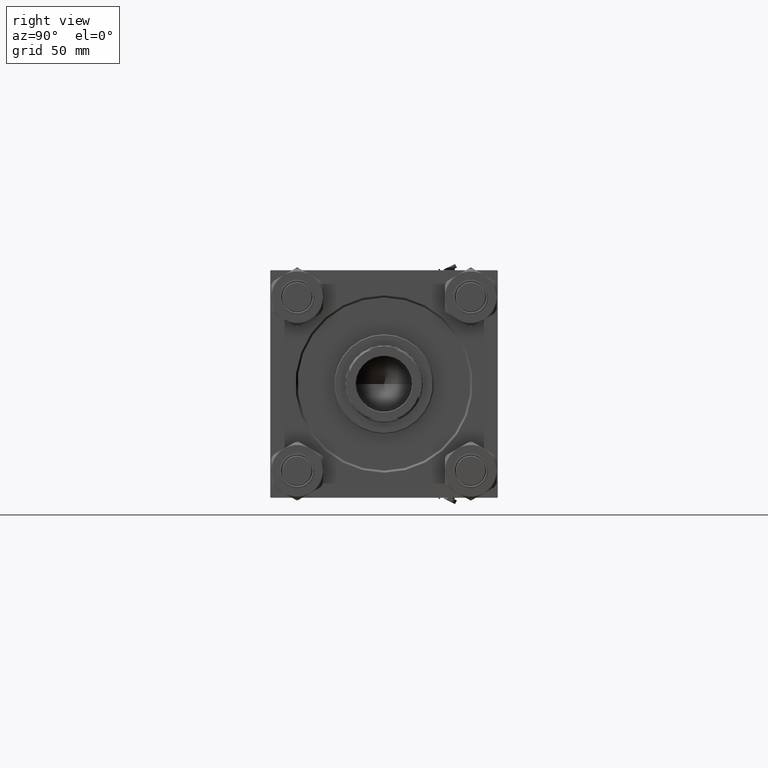
[diagram: clean part render]
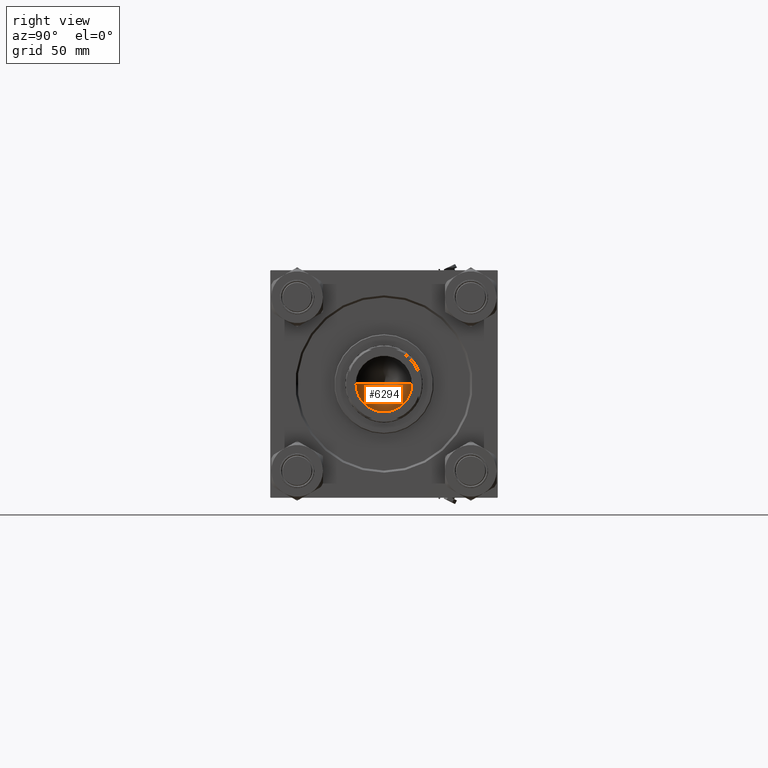
[diagram: same view with one face highlighted and labeled with its STEP entity id]
A machine part, right view. The second image highlights one B-rep face of the part: STEP entity #6294.
In plain terms, the highlighted conical surface has half-angle 59 deg.
Its self-contained STEP definition (entity closure, byte-faithful):
#4469 = CARTESIAN_POINT ( 'NONE',  ( -1.584115414415908206E-14, 0.000000000000000000, 263.8325724646919070 ) ) ;
#5169 = VECTOR ( 'NONE', #9144, 1000.000000000000000 ) ;
#5391 = CONICAL_SURFACE ( 'NONE', #47751, 20.24999999999998934, 1.029744258676652313 ) ;
#6294 = ADVANCED_FACE ( 'NONE', ( #44147 ), #5391, .F. ) ;
#7465 = VERTEX_POINT ( 'NONE', #48676 ) ;
#8813 = CARTESIAN_POINT ( 'NONE',  ( 0.000000000000000000, 0.000000000000000000, 276.0000000000000000 ) ) ;
#9144 = DIRECTION ( 'NONE',  ( -0.8571673007021112234, 1.049727191138617340E-16, 0.5150380749100560429 ) ) ;
#9252 = VERTEX_POINT ( 'NONE', #48507 ) ;
#9403 = LINE ( 'NONE', #49689, #5169 ) ;
#12369 = ORIENTED_EDGE ( 'NONE', *, *, #26961, .T. ) ;
#14107 = DIRECTION ( 'NONE',  ( 0.8571673007021112234, 0.000000000000000000, 0.5150380749100560429 ) ) ;
#16221 = ORIENTED_EDGE ( 'NONE', *, *, #29410, .T. ) ;
#16333 = CARTESIAN_POINT ( 'NONE',  ( 0.000000000000000000, 0.000000000000000000, 276.0000000000000000 ) ) ;
#17741 = CIRCLE ( 'NONE', #46812, 20.24999999999998934 ) ;
#20997 = DIRECTION ( 'NONE',  ( -0.000000000000000000, -0.000000000000000000, 1.000000000000000000 ) ) ;
#24322 = VECTOR ( 'NONE', #14107, 1000.000000000000000 ) ;
#24588 = CARTESIAN_POINT ( 'NONE',  ( 20.24999999999998934, 0.000000000000000000, 276.0000000000000000 ) ) ;
#24843 = LINE ( 'NONE', #24588, #24322 ) ;
#26193 = DIRECTION ( 'NONE',  ( -0.000000000000000000, -0.000000000000000000, 1.000000000000000000 ) ) ;
#26241 = EDGE_CURVE ( 'NONE', #48594, #7465, #9403, .T. ) ;
#26961 = EDGE_CURVE ( 'NONE', #48594, #9252, #24843, .T. ) ;
#29410 = EDGE_CURVE ( 'NONE', #9252, #7465, #17741, .T. ) ;
#32193 = DIRECTION ( 'NONE',  ( 1.000000000000000000, 0.000000000000000000, 0.000000000000000000 ) ) ;
#38040 = ORIENTED_EDGE ( 'NONE', *, *, #26241, .F. ) ;
#43961 = EDGE_LOOP ( 'NONE', ( #38040, #12369, #16221 ) ) ;
#44147 = FACE_OUTER_BOUND ( 'NONE', #43961, .T. ) ;
#46812 = AXIS2_PLACEMENT_3D ( 'NONE', #8813, #26193, #49875 ) ;
#47751 = AXIS2_PLACEMENT_3D ( 'NONE', #16333, #20997, #32193 ) ;
#48507 = CARTESIAN_POINT ( 'NONE',  ( 20.24999999999998934, 0.000000000000000000, 276.0000000000000000 ) ) ;
#48594 = VERTEX_POINT ( 'NONE', #4469 ) ;
#48676 = CARTESIAN_POINT ( 'NONE',  ( -20.24999999999998934, 2.479909768273389117E-15, 276.0000000000000000 ) ) ;
#49689 = CARTESIAN_POINT ( 'NONE',  ( -20.24999999999998934, 2.479909768273389117E-15, 276.0000000000000000 ) ) ;
#49875 = DIRECTION ( 'NONE',  ( 1.000000000000000000, 0.000000000000000000, 0.000000000000000000 ) ) ;